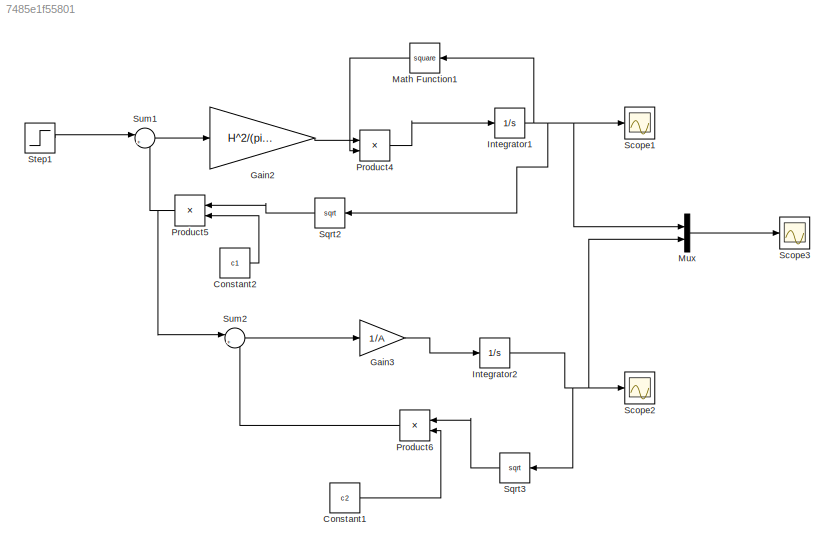
MODEL slx_7485e1f55801
KIND model
BLOCK [Constant] Constant1
  Value = c2
BLOCK [Constant] Constant2
  Value = c1
BLOCK [Gain] Gain2
  Gain = H^2/(pi*R^2)
  OutDataTypeStr = Inherit: Inherit via internal rule
  ParamDataTypeStr = Inherit: Inherit via internal rule
  SaturateOnIntegerOverflow = off
BLOCK [Gain] Gain3
  Gain = 1/A
  OutDataTypeStr = Inherit: Inherit via internal rule
  ParamDataTypeStr = Inherit: Inherit via internal rule
  SaturateOnIntegerOverflow = off
BLOCK [Integrator] Integrator1
  InitialCondition = 0.01
  Ports = [1, 1]
  ZeroCross = off
BLOCK [Integrator] Integrator2
  Ports = [1, 1]
BLOCK [Math] Math Function1
  Operator = square
  Ports = [1, 1]
BLOCK [Mux] Mux
  DisplayOption = bar
  Inputs = 2
  Ports = [2, 1]
BLOCK [Product] Product4
  InputSameDT = off
  Inputs = */
  OutDataTypeStr = Inherit: Inherit via internal rule
  Ports = [2, 1]
  RndMeth = Floor
  SaturateOnIntegerOverflow = off
BLOCK [Product] Product5
  InputSameDT = off
  OutDataTypeStr = Inherit: Inherit via internal rule
  Ports = [2, 1]
  RndMeth = Floor
  SaturateOnIntegerOverflow = off
BLOCK [Product] Product6
  InputSameDT = off
  OutDataTypeStr = Inherit: Inherit via internal rule
  Ports = [2, 1]
  RndMeth = Floor
  SaturateOnIntegerOverflow = off
BLOCK [Scope] Scope1
  DataFormat = StructureWithTime
  Floating = off
  NumInputPorts = 1
  Ports = [1]
  SampleTime = 0
  SaveName = ScopeData1
  ShowLegends = off
BLOCK [Scope] Scope2
  DataFormat = StructureWithTime
  Floating = off
  NumInputPorts = 1
  Ports = [1]
  SampleTime = 0
  SaveName = ScopeData2
  ShowLegends = off
BLOCK [Scope] Scope3
  DataFormat = StructureWithTime
  Floating = off
  NumInputPorts = 1
  Ports = [1]
  SampleTime = 0
  ShowLegends = off
BLOCK [Sqrt] Sqrt2
BLOCK [Sqrt] Sqrt3
BLOCK [Step] Step1
  After = 13.3
  Before = 1
  SampleTime = 0
  ZeroCross = off
BLOCK [Sum] Sum1
  IconShape = round
  InputSameDT = off
  Inputs = |+-
  OutDataTypeStr = Inherit: Inherit via internal rule
  Ports = [2, 1]
  SaturateOnIntegerOverflow = off
BLOCK [Sum] Sum2
  IconShape = round
  InputSameDT = off
  Inputs = |+-
  OutDataTypeStr = Inherit: Inherit via internal rule
  Ports = [2, 1]
  SaturateOnIntegerOverflow = off
LINE Constant1:1 -> Product6:2
LINE Constant2:1 -> Product5:2
LINE Gain2:1 -> Product4:1
LINE Gain3:1 -> Integrator2:1
NET Integrator1:1 -> Math Function1:1, Mux:1, Scope1:1, Sqrt2:1
NET Integrator2:1 -> Mux:2, Scope2:1, Sqrt3:1
LINE Math Function1:1 -> Product4:2
LINE Mux:1 -> Scope3:1
LINE Product4:1 -> Integrator1:1
NET Product5:1 -> Sum1:2, Sum2:1
LINE Product6:1 -> Sum2:2
LINE Sqrt2:1 -> Product5:1
LINE Sqrt3:1 -> Product6:1
LINE Step1:1 -> Sum1:1
LINE Sum1:1 -> Gain2:1
LINE Sum2:1 -> Gain3:1
note: NET lines group one-source signal fan-out (src -> all destinations, sorted); 1:1 wires keep LINE
